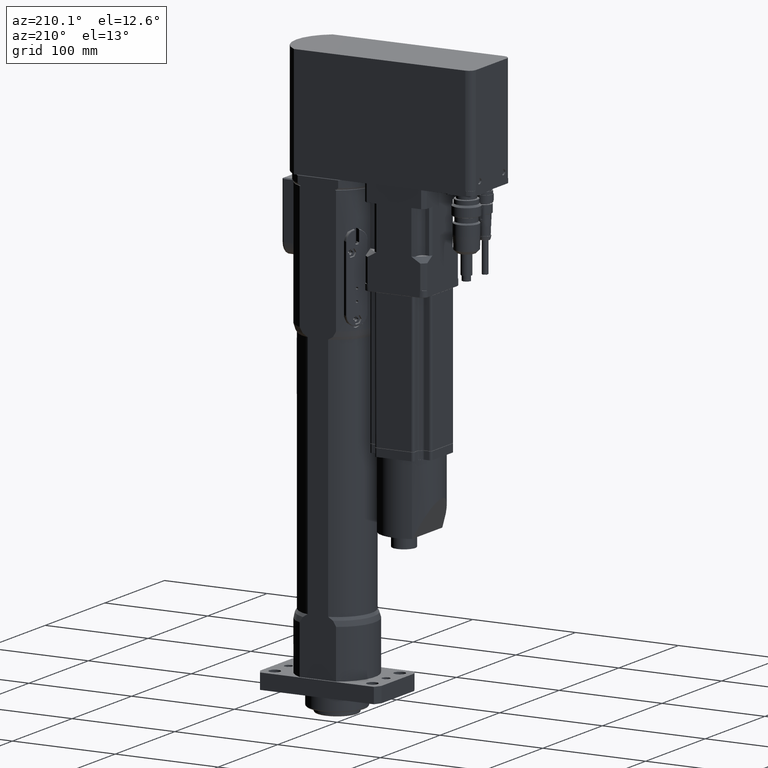
[diagram: clean part render]
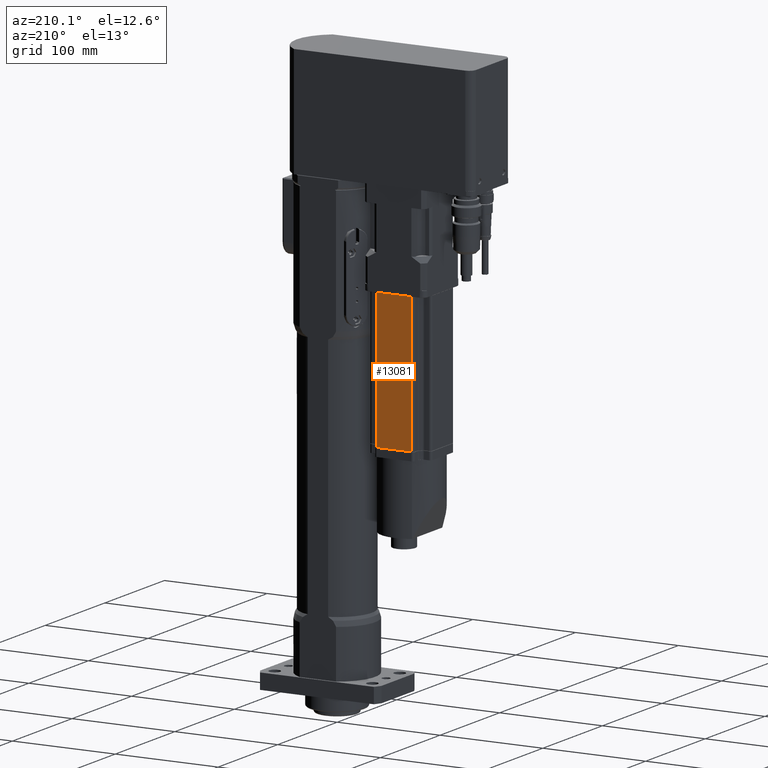
[diagram: same view with one face highlighted and labeled with its STEP entity id]
A machine part, auxiliary view. The second image highlights one B-rep face of the part: STEP entity #13081.
In plain terms, the highlighted planar face has unit normal (-0, 1, 0).
Its self-contained STEP definition (entity closure, byte-faithful):
#662=LINE('',#23334,#1597);
#702=LINE('',#23455,#1637);
#703=LINE('',#23461,#1638);
#704=LINE('',#23462,#1639);
#1597=VECTOR('',#16760,34.);
#1637=VECTOR('',#16900,133.8);
#1638=VECTOR('',#16907,133.8);
#1639=VECTOR('',#16908,34.);
#2466=PLANE('',#14221);
#3236=FACE_OUTER_BOUND('',#4107,.T.);
#4107=EDGE_LOOP('',(#9911,#9912,#9913,#9914));
#5839=VERTEX_POINT('',#23328);
#5840=VERTEX_POINT('',#23332);
#5871=VERTEX_POINT('',#23454);
#5873=VERTEX_POINT('',#23460);
#7267=EDGE_CURVE('',#5839,#5840,#662,.T.);
#7327=EDGE_CURVE('',#5871,#5840,#702,.T.);
#7330=EDGE_CURVE('',#5873,#5839,#703,.T.);
#7331=EDGE_CURVE('',#5871,#5873,#704,.T.);
#9911=ORIENTED_EDGE('',*,*,#7267,.F.);
#9912=ORIENTED_EDGE('',*,*,#7330,.F.);
#9913=ORIENTED_EDGE('',*,*,#7331,.F.);
#9914=ORIENTED_EDGE('',*,*,#7327,.T.);
#13081=ADVANCED_FACE('',(#3236),#2466,.T.);
#14221=AXIS2_PLACEMENT_3D('',#23459,#16905,#16906);
#16760=DIRECTION('',(1.,4.15017143758144E-16,-9.5486277816282E-16));
#16900=DIRECTION('',(-9.5486277816282E-16,-1.12787535060299E-31,-1.));
#16905=DIRECTION('center_axis',(-4.15017143758145E-16,1.,2.83496887813802E-31));
#16906=DIRECTION('ref_axis',(1.,3.5527136788005E-16,0.));
#16907=DIRECTION('',(-9.5486277816282E-16,-1.12787535060299E-31,-1.));
#16908=DIRECTION('',(-1.,-4.15017143758144E-16,9.5486277816282E-16));
#23328=CARTESIAN_POINT('',(-89.4999999999998,30.0000000000001,234.700000000001));
#23332=CARTESIAN_POINT('',(-55.4999999999998,30.0000000000001,234.700000000001));
#23334=CARTESIAN_POINT('',(-80.9999999999998,30.0000000000001,234.700000000001));
#23454=CARTESIAN_POINT('',(-55.4999999999997,30.0000000000001,368.500000000001));
#23455=CARTESIAN_POINT('',(-55.4999999999997,30.0000000000001,368.500000000001));
#23459=CARTESIAN_POINT('Origin',(-89.4999999999996,30.0000000000001,368.500000000001));
#23460=CARTESIAN_POINT('',(-89.4999999999996,30.0000000000001,368.500000000001));
#23461=CARTESIAN_POINT('',(-89.4999999999996,30.0000000000001,368.500000000001));
#23462=CARTESIAN_POINT('',(-55.4999999999997,30.0000000000001,368.500000000001));